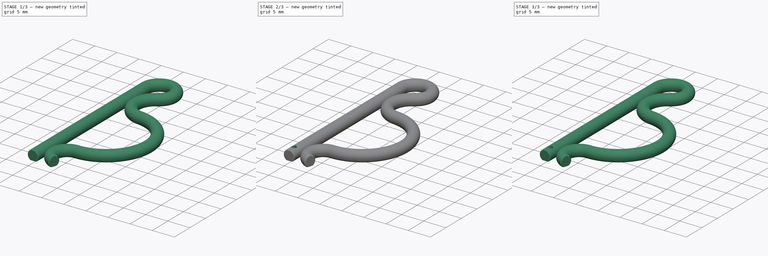
[diagram: build sequence overview — one tinted view per stage of 3, left to right]
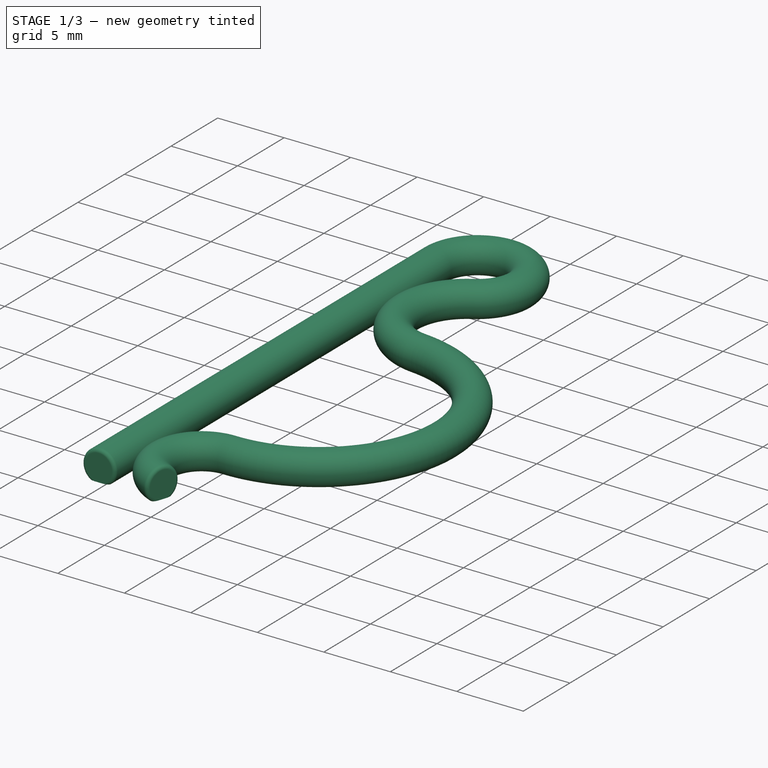
[diagram: stage 1 of 3 — iso view after this stage's code; geometry added in this stage tinted green]
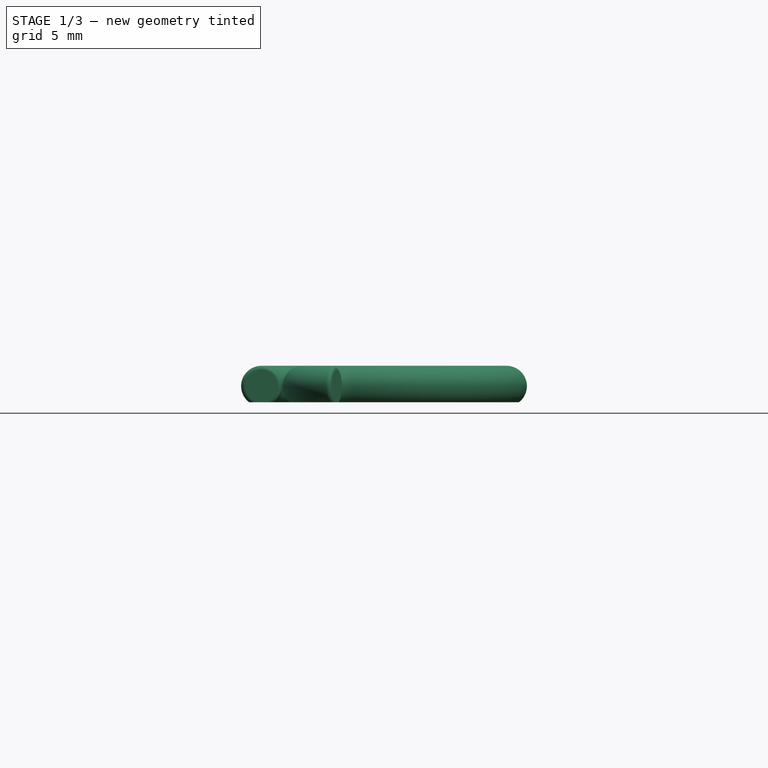
[diagram: stage 1 of 3 — front view after this stage's code; geometry added in this stage tinted green]
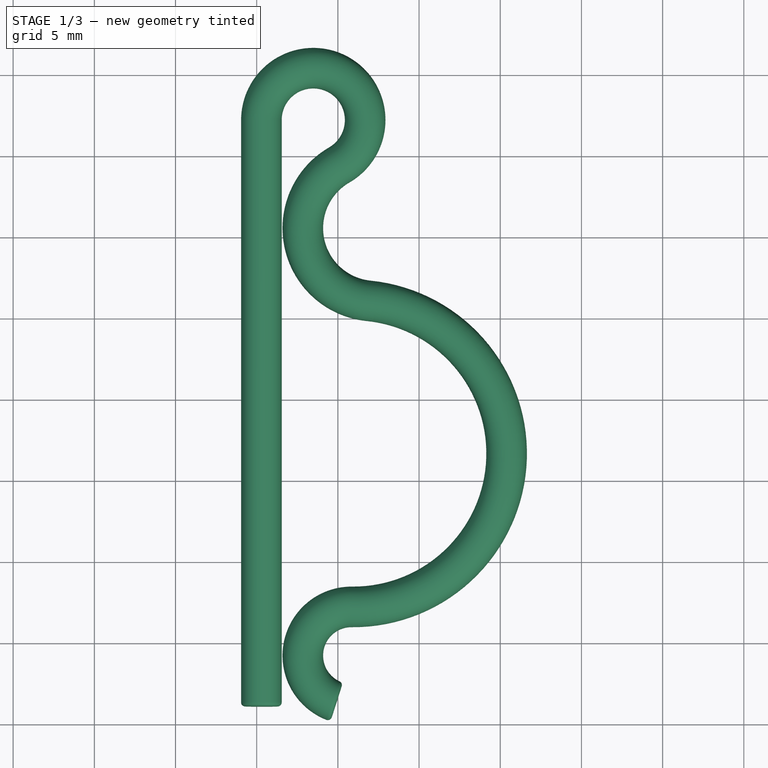
[diagram: stage 1 of 3 — top view after this stage's code; geometry added in this stage tinted green]
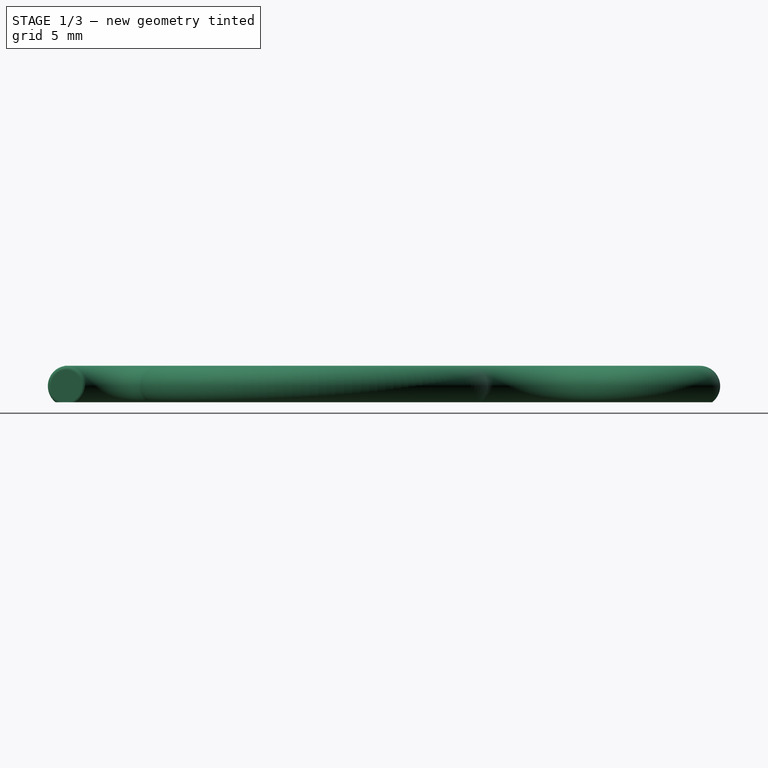
[diagram: stage 1 of 3 — right view after this stage's code; geometry added in this stage tinted green]
FCSTD DOCUMENT  (FreeCAD 1.1R20260414 (Git shallow))
Label: скрепка
License: All rights reserved
LicenseURL: https://en.wikipedia.org/wiki/All_rights_reserved
objects: Sketcher::SketchObject×3, PartDesign::Fillet×2, App::Point×1, Part::DatumPlane×1, PartDesign::AdditivePipe×1, PartDesign::Pocket×1, PartDesign::Chamfer×1, PartDesign::Body×1
note: 22 computed .brp shape members not serialized (recipe doc carries the construction recipe); baked Part::Feature solids carry a one-line shape summary decoded from their .brp

FEATURE [App::Point] Origin001  label="Начало координат"
  Role = Origin
FEATURE [Sketcher::SketchObject] Sketch
  ArcFitTolerance = 1e-06
  AttachmentSupport = -> [XY_Plane]
  ExternalTypes = [0]
  FullyConstrained = false
  MakeInternals = false
  MapMode = 5
  _ExternalGeoVersion = 0
  sketch-geometry (7):
    g0: ArcOfCircle CenterX=15.8396 CenterY=9.23966 CenterZ=0 NormalX=0 NormalY=0 NormalZ=1 AngleXU=0 Radius=3 StartAngle=1.56247 EndAngle=4.40209
    g1: ArcOfCircle CenterX=15.9432 CenterY=21.6895 CenterZ=0 NormalX=0 NormalY=0 NormalZ=1 AngleXU=0 Radius=9.45027 StartAngle=4.70406 EndAngle=7.75376
    g2: ArcOfCircle CenterX=17.3388 CenterY=35.5691 CenterZ=0 NormalX=0 NormalY=0 NormalZ=1 AngleXU=0 Radius=4.49929 StartAngle=2.09543 EndAngle=4.61217
    g3: ArcOfCircle CenterX=13.4847 CenterY=42.2287 CenterZ=0 NormalX=0 NormalY=0 NormalZ=1 AngleXU=0 Radius=3.19519 StartAngle=5.23702 EndAngle=9.42478
    g4: LineSegment StartX=10.2896 StartY=6.10621 StartZ=0 EndX=10.2896 EndY=42.2287 EndZ=0
    g5: GeomPoint X=12.8396 Y=9.23966 Z=0
    g6: GeomPoint X=10.2896 Y=35.5691 Z=0
  constraints (13):
    c: Tangent(g3,g2) = 1.5708
    c: Tangent(g2,g1) = 1.5708
    c: Tangent(g1,g0) = 1.5708
    c: Tangent(g4,g3) = 1.5708
    c: PointOnObject(g5,g0)
    c: Horizontal(g5,g0)
    c: PointOnObject(g6,g4)
    c: Distance(g6,g2) = 2.55
    c: Horizontal(g2,g6)
    c: Vertical(g4)
    c: Radius(g0) = 3
    c: DistanceX(g4,g5) = 2.55
    c: Block(g3)
FEATURE [Part::DatumPlane] DatumPlane
  AttachmentSupport = -> [Sketch]
  MapMode = 7
  Placement = pos=(14.9235,6.38293,0) rot=(-0.458434,0.628426,0.628426;4.00128rad)
FEATURE [Sketcher::SketchObject] Sketch001
  ArcFitTolerance = 1e-06
  AttachmentSupport = -> [DatumPlane]
  ExternalTypes = [0]
  FullyConstrained = false
  MakeInternals = false
  MapMode = 5
  Placement = pos=(14.9235,6.38293,0) rot=(-0.458434,0.628426,0.628426;4.00128rad)
  _ExternalGeoVersion = 0
  sketch-geometry (2):
    g0: ArcOfCircle CenterX=0 CenterY=0 CenterZ=0 NormalX=0 NormalY=0 NormalZ=1 AngleXU=0 Radius=1.25 StartAngle=5.36643 EndAngle=10.3415
    g1: LineSegment StartX=-0.760502 StartY=-0.992037 StartZ=0 EndX=0.760502 EndY=-0.992037 EndZ=0
  constraints (5):
    c: Coincident(g0,g-1)
    c: Horizontal(g1)
    c: Diameter(g0) = 2.5
    c: Coincident(g1,g0)
    c: Coincident(g1,g0)
FEATURE [PartDesign::AdditivePipe] AdditivePipe
  AuxiliaryCurvilinear = true
  AuxiliarySpineTangent = false
  Binormal = (0,0,0)
  Mode = 0
  Placement = pos=(14.9235,6.38293,0) rot=(-0.458434,0.628426,0.628426;4.00128rad)
  Profile = -> Sketch001
  Refine = true
  Spine = -> Sketch [Edge5,Edge4,Edge3,Edge2,Edge1]
  SpineTangent = false
  Suppressed = false
  Transformation = 0
  Transition = 0
FEATURE [PartDesign::Fillet] Fillet
  Base = -> AdditivePipe [Edge1,Edge17]
  BaseFeature = -> AdditivePipe
  Placement = pos=(14.9235,6.38293,0) rot=(-0.458434,0.628426,0.628426;4.00128rad)
  Radius = 0.25
  Refine = true
  SupportTransform = false
  Suppressed = false
  UseAllEdges = false
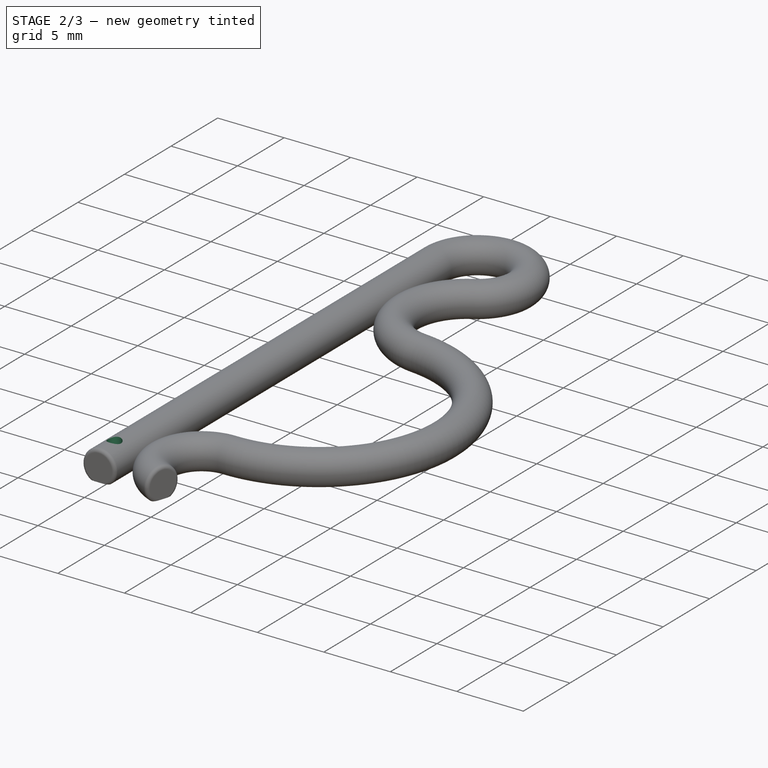
[diagram: stage 2 of 3 — iso view after this stage's code; geometry added in this stage tinted green]
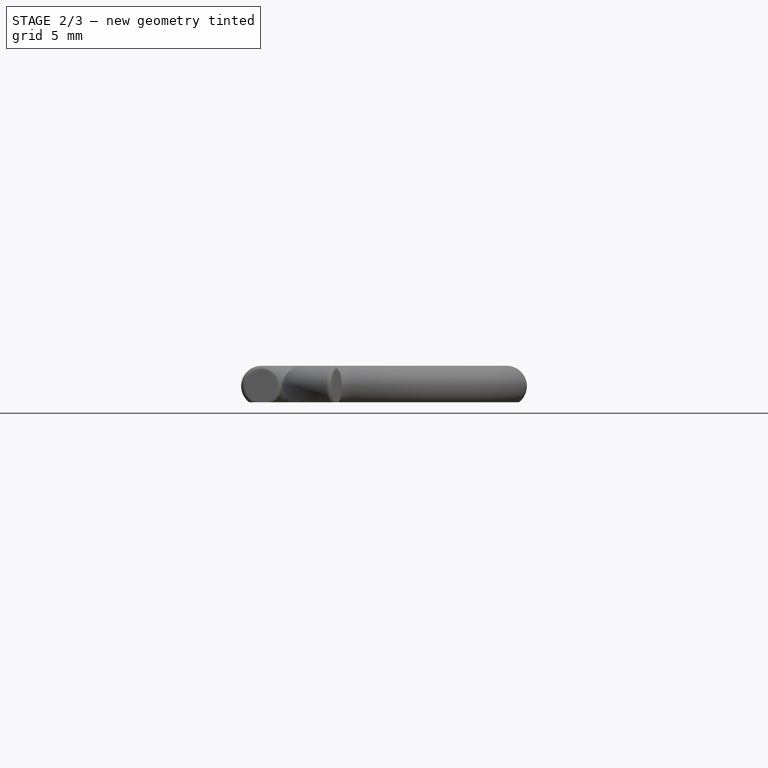
[diagram: stage 2 of 3 — front view after this stage's code; geometry added in this stage tinted green]
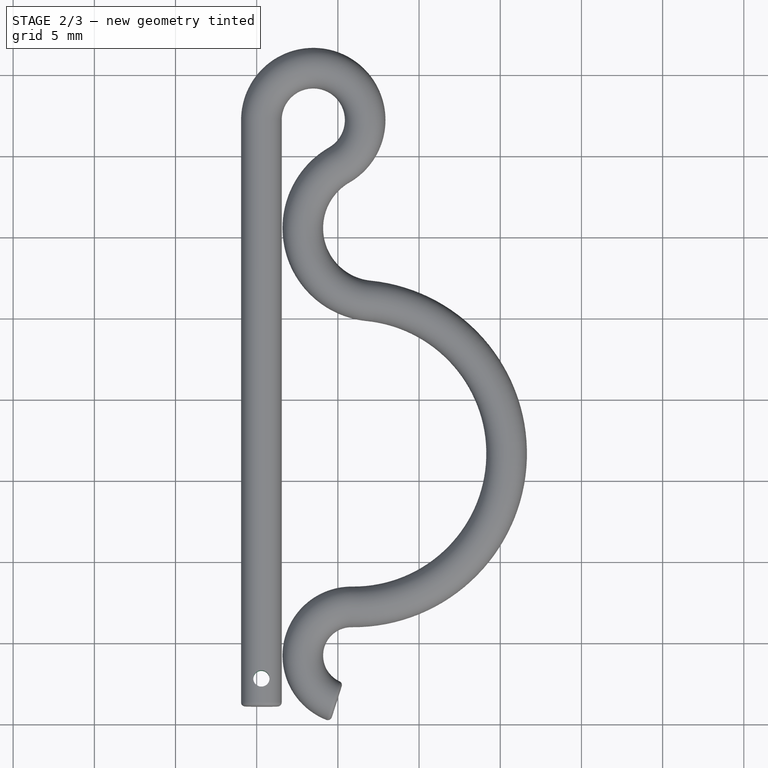
[diagram: stage 2 of 3 — top view after this stage's code; geometry added in this stage tinted green]
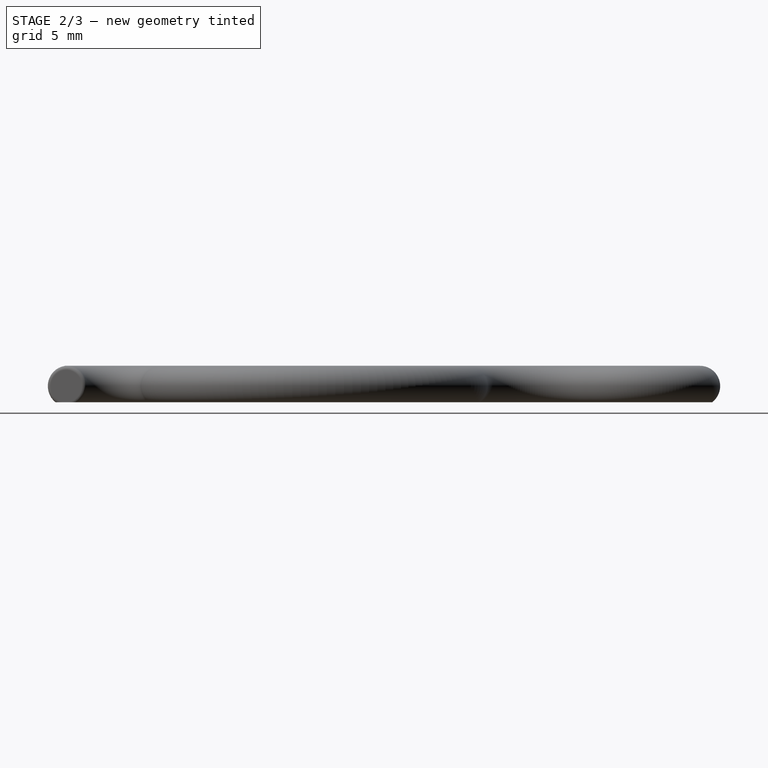
[diagram: stage 2 of 3 — right view after this stage's code; geometry added in this stage tinted green]
FEATURE [Sketcher::SketchObject] Sketch002
  ArcFitTolerance = 1e-06
  AttachmentOffset = pos=(0,0,4) rot=(0,0,1;0rad)
  AttachmentSupport = -> [XY_Plane]
  ExternalGeometry = -> [Fillet]
  ExternalTypes = [0]
  FullyConstrained = false
  MakeInternals = false
  MapMode = 5
  Placement = pos=(0,0,4) rot=(0,0,1;0rad)
  _ExternalGeoVersion = 0
  sketch-geometry (2):
    g0: Circle CenterX=10.2896 CenterY=7.81116 CenterZ=0 NormalX=0 NormalY=0 NormalZ=1 AngleXU=0 Radius=0.5
    g1: GeomPoint [constr] X=10.2896 Y=6.35621 Z=0
  constraints (3):
    c: Symmetric(g-3,g-3,g1)
    c: Vertical(g1,g0)
    c: Diameter(g0) = 1
FEATURE [PartDesign::Pocket] Pocket
  BaseFeature = -> Fillet
  Direction = (0,0,-1)
  Length = 5
  Length2 = 5
  Placement = pos=(14.9235,6.38293,0) rot=(-0.458434,0.628426,0.628426;4.00128rad)
  Profile = -> Sketch002
  ReferenceAxis = -> Sketch002 [N_Axis]
  Refine = true
  SideType = 0
  Suppressed = false
  Type = 1
  Type2 = 0
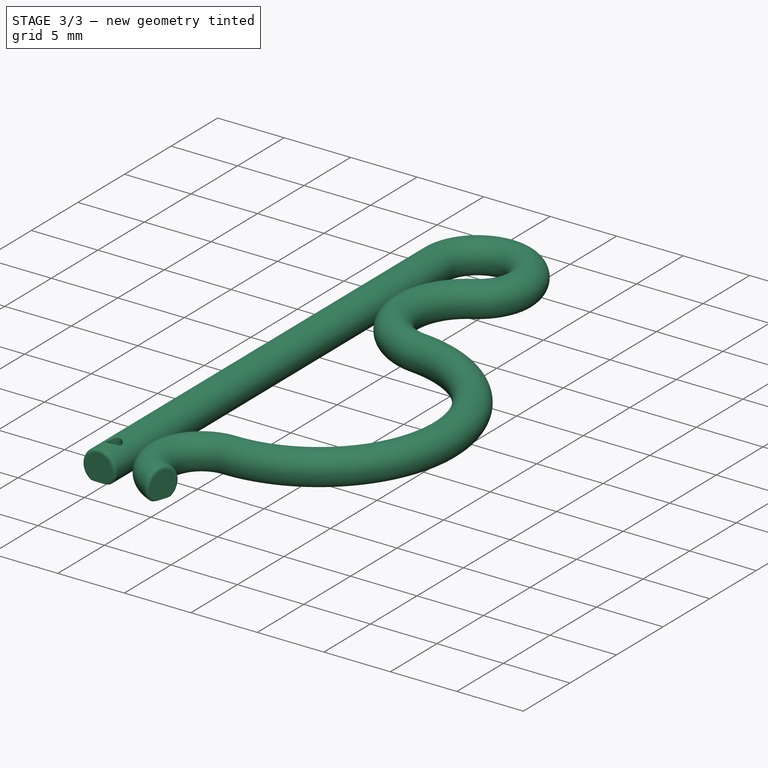
[diagram: stage 3 of 3 — iso view after this stage's code; geometry added in this stage tinted green]
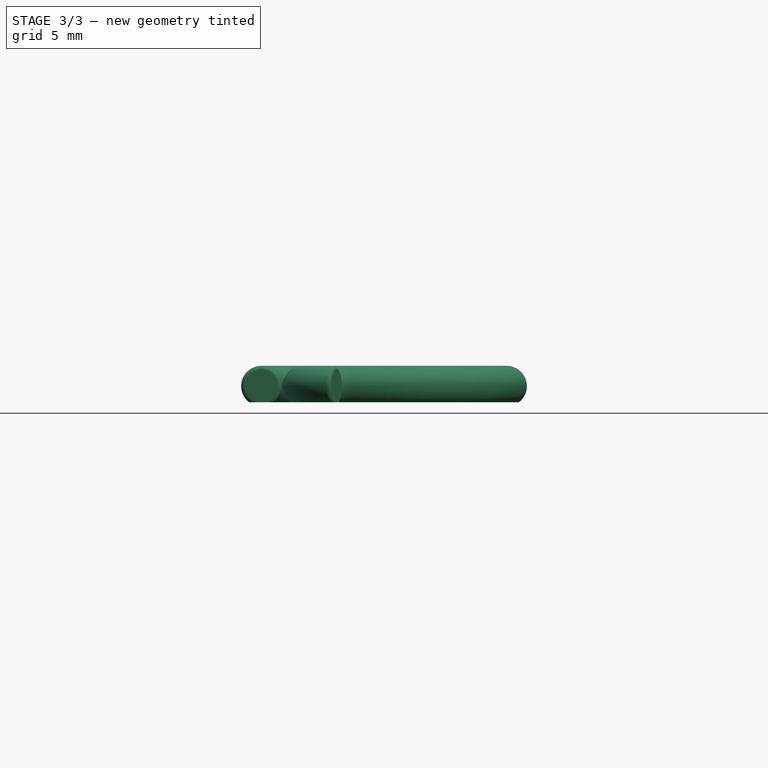
[diagram: stage 3 of 3 — front view after this stage's code; geometry added in this stage tinted green]
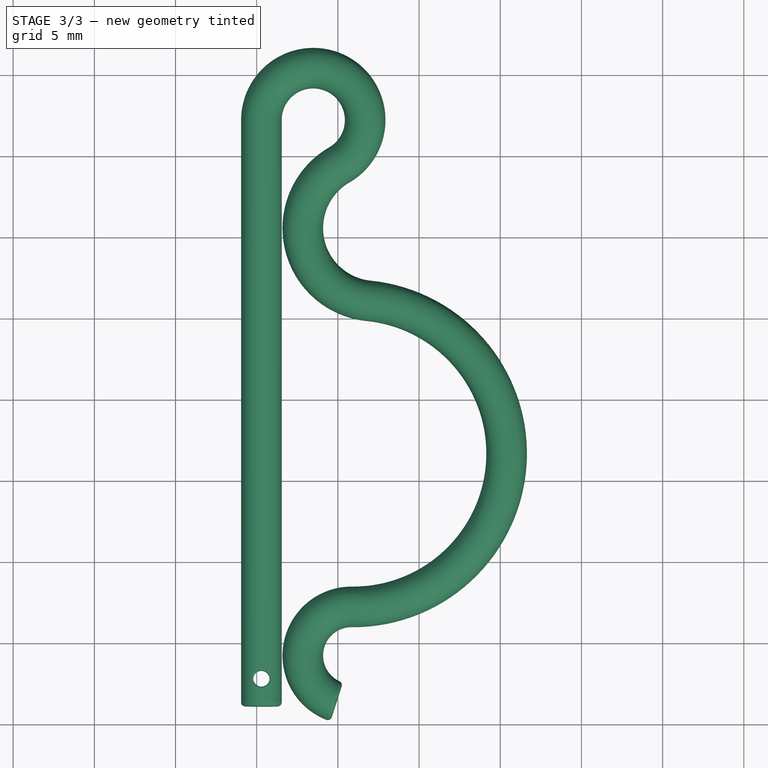
[diagram: stage 3 of 3 — top view after this stage's code; geometry added in this stage tinted green]
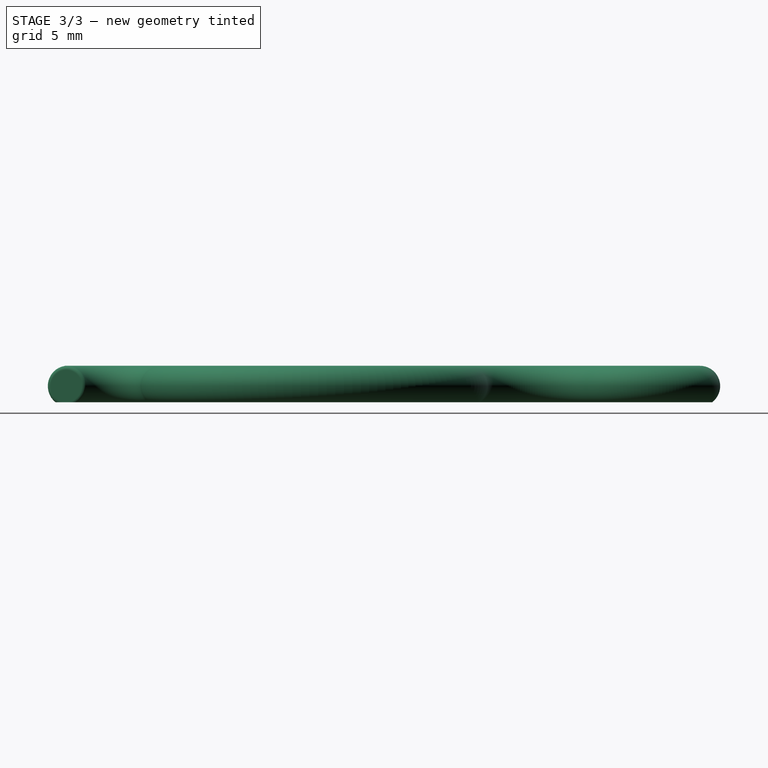
[diagram: stage 3 of 3 — right view after this stage's code; geometry added in this stage tinted green]
FEATURE [PartDesign::Fillet] Fillet001
  Base = -> Pocket [Edge21]
  BaseFeature = -> Pocket
  Placement = pos=(14.9235,6.38293,0) rot=(-0.458434,0.628426,0.628426;4.00128rad)
  Radius = 0.1
  Refine = true
  SupportTransform = false
  Suppressed = false
  UseAllEdges = false
FEATURE [PartDesign::Chamfer] Chamfer
  Angle = 45
  Base = -> Fillet001 [Edge22]
  BaseFeature = -> Fillet001
  ChamferType = 0
  FlipDirection = false
  Placement = pos=(14.9235,6.38293,0) rot=(-0.458434,0.628426,0.628426;4.00128rad)
  Refine = true
  Size = 0.1
  Size2 = 1
  SupportTransform = false
  Suppressed = false
  UseAllEdges = false
FEATURE [PartDesign::Body] Body  label="Тело"
  AllowCompound = false
  Group = -> [Sketch,DatumPlane,Sketch001,AdditivePipe,Fillet,Sketch002,Pocket,Fillet001,Chamfer]
  Origin = -> Origin
  Placement = pos=(88,0,0) rot=(0,0,1;0rad)
  Tip = -> Chamfer
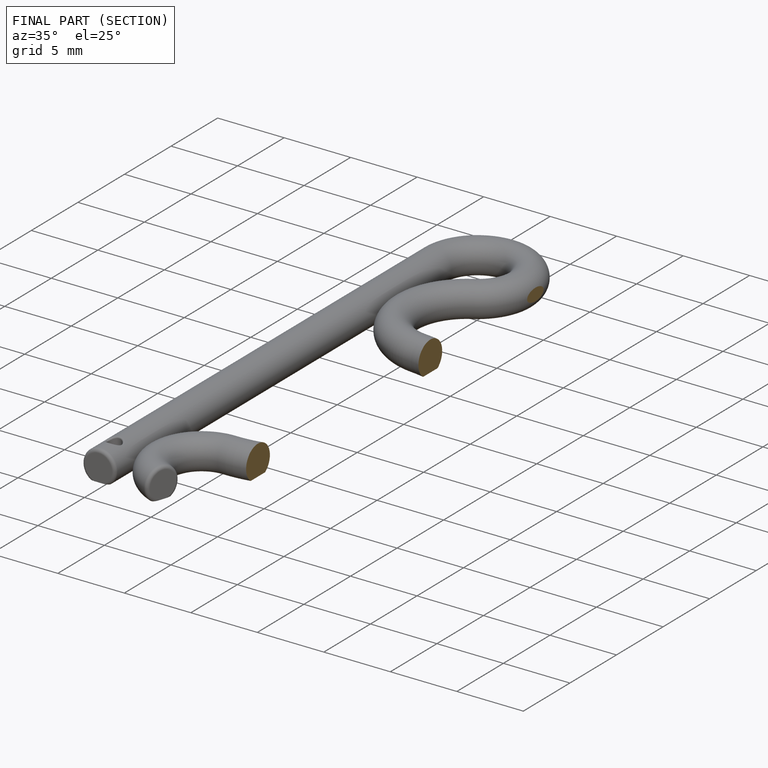
[diagram: finished part — half-section view (interior)]
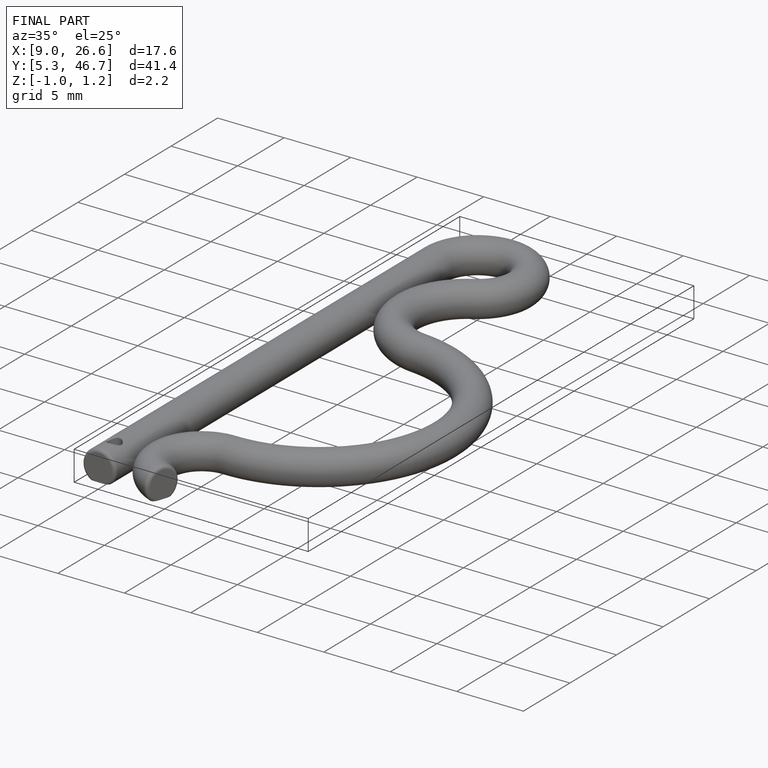
[diagram: finished part — iso view with bounding-box wireframe]
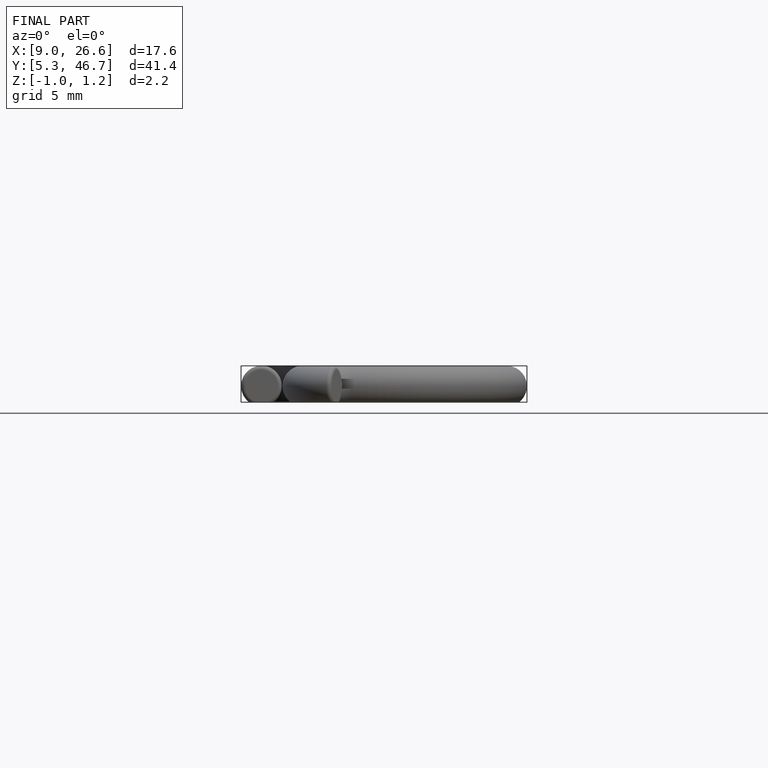
[diagram: finished part — front view with bounding-box wireframe]
